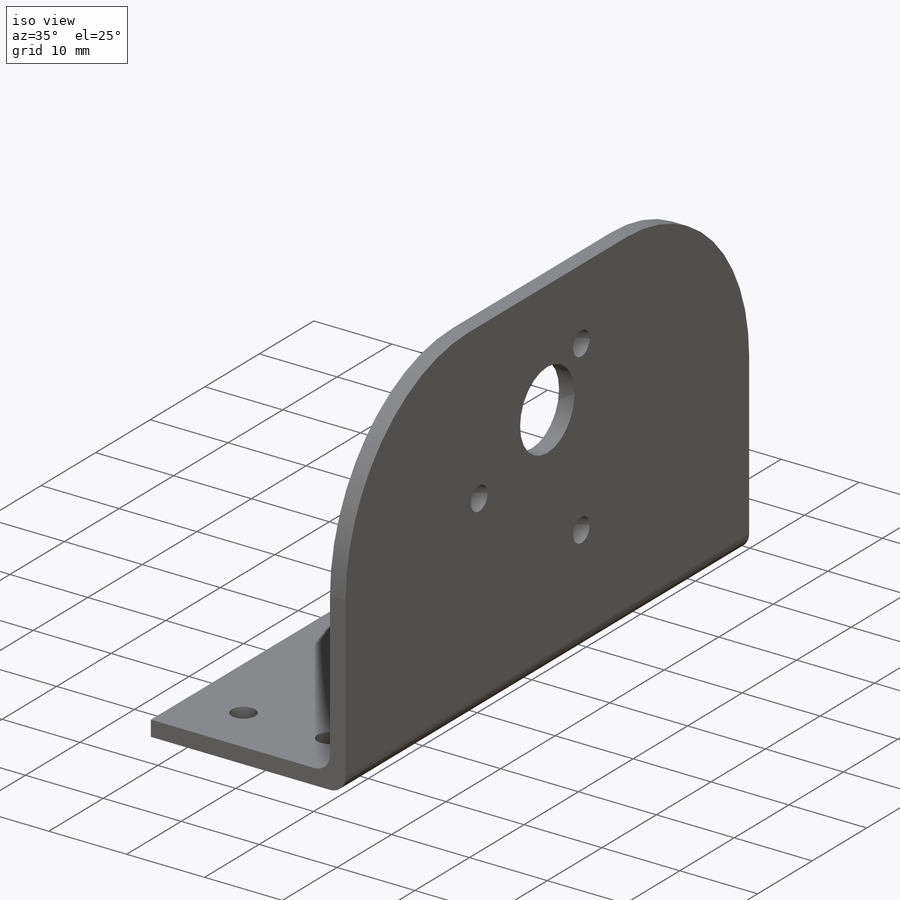
[diagram: iso view]
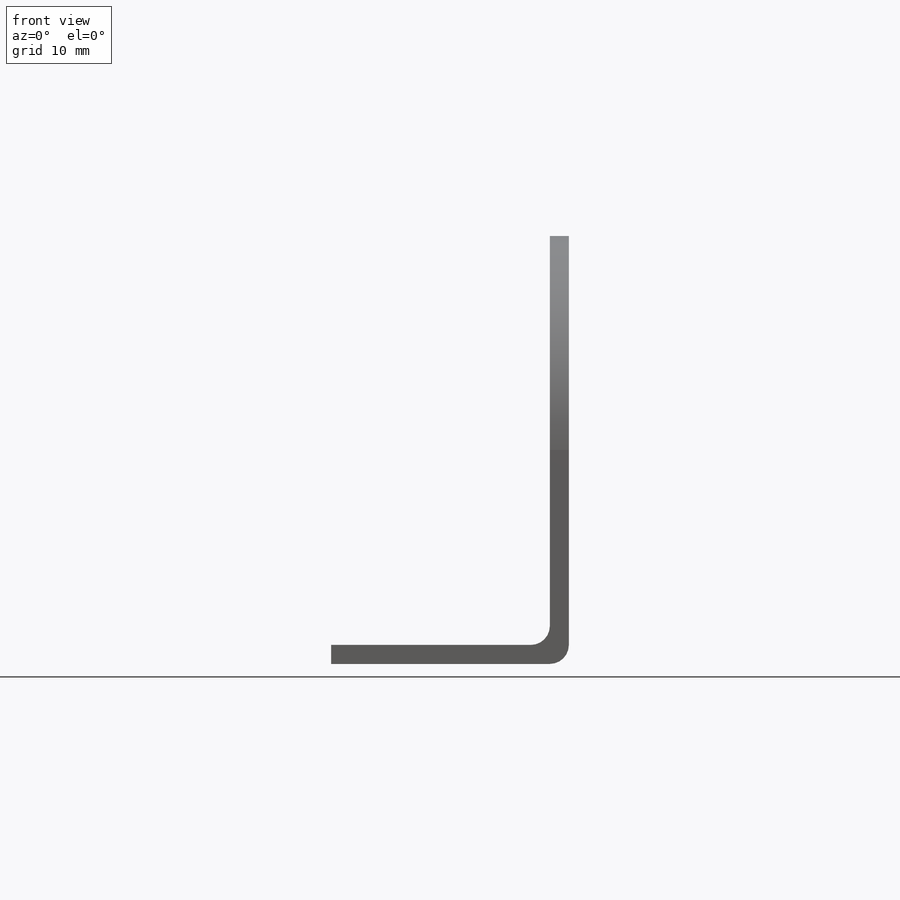
[diagram: front view]
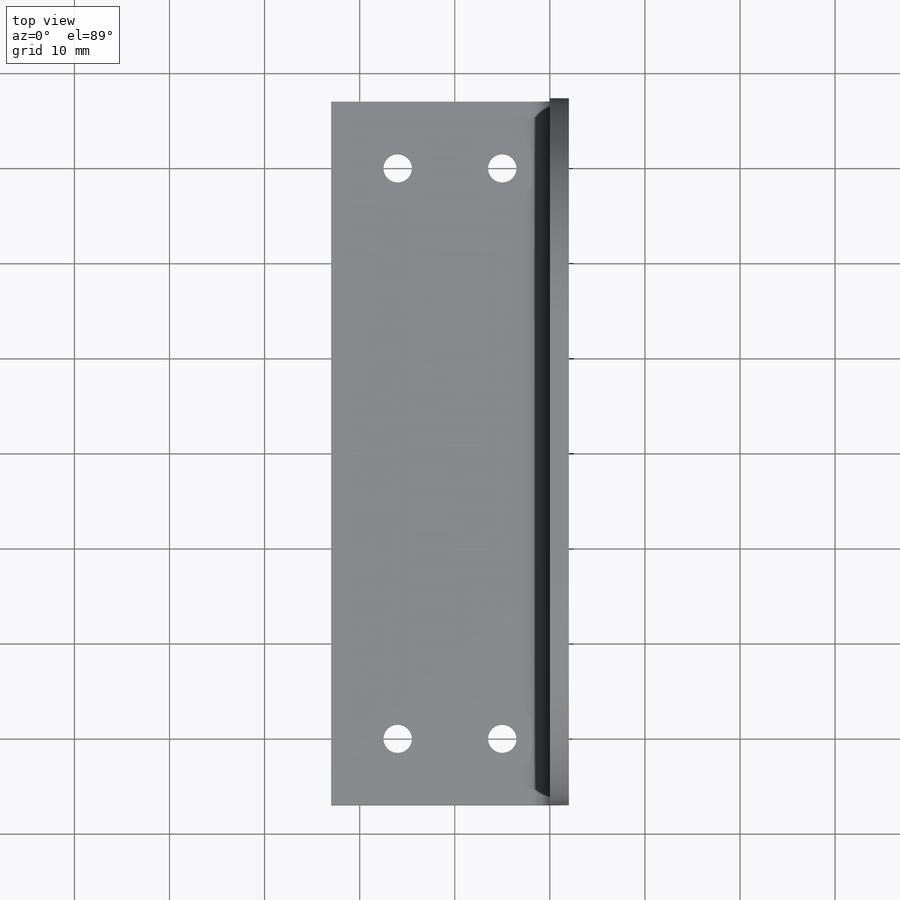
[diagram: top view]
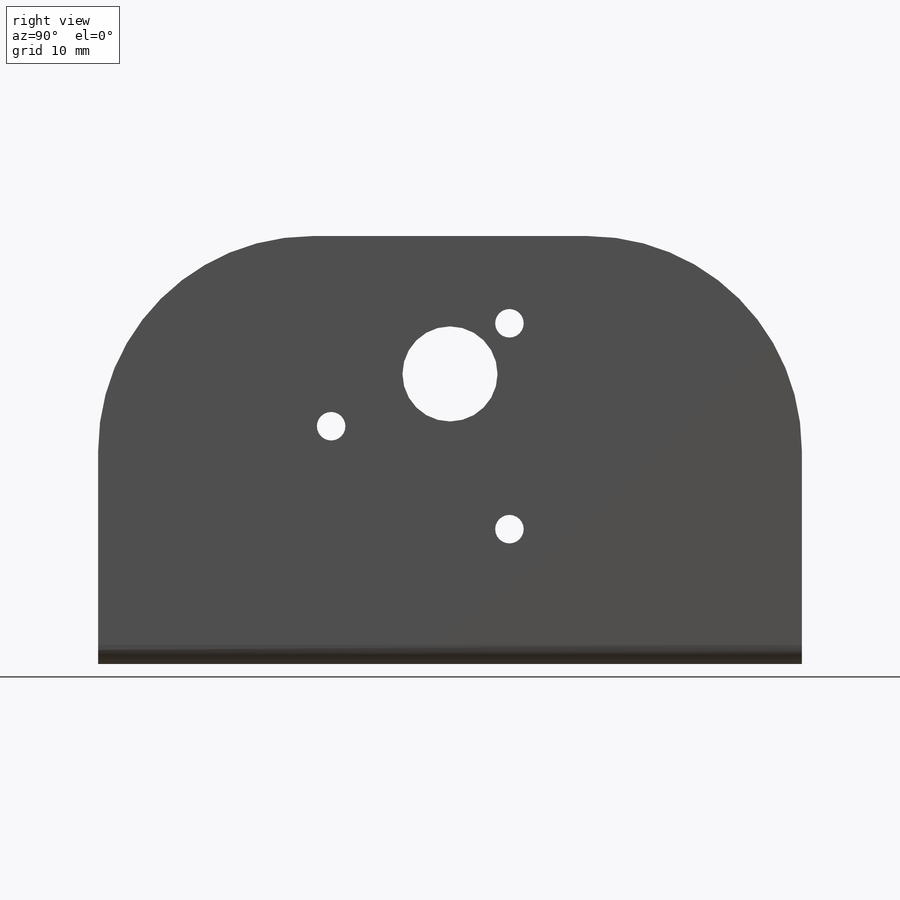
[diagram: right view]
SOLIDWORKS PART (.sldprt)
format: sldprt  version: not decoded by parser v0  size: 210,432 bytes
history: native  units: mm
features: sketch x4, extrude x2, cut_extrude x2, material x1, fillet x1 (+11 scaffold rows collapsed)
feature tree (21):
  scaffold x11  (default folders/planes/origin — collapsed)
  material  "1060 Alloy"
  sketch  "Sketch1"  dims[D1=45.0mm D2=37.0mm D3=22.5mm]
  extrude  "Boss-Extrude1"  Depth=2mm
  sketch  "Sketch2"  dims[D1=2.0mm]
  extrude  "Boss-Extrude2"  Depth=23mm
  fillet  "Fillet1"  Radius=2mm
  sketch  "Sketch3"  dims[c1.D1=10.0mm c1.D3=25.0mm c1.D4=3.0mm c2.D1=25.0mm c2.D6=10.0mm c2.D2=25.0mm c2.D5=~10.074287mm c3.D5=60.0deg c3.D3=5.5mm c3.D7=3.0]
  cut_extrude  "Cut-Extrude1"  [1 undecoded]
  sketch  "Sketch5"  dims[c1.D5=3.0mm c1.D1=7.0mm c1.D2=~8.173643mm c2.D2=90.0deg c3.D2=7.0mm c3.D3=18.0mm c3.D4=7.0mm]
  cut_extrude  "Cut-Extrude2"  [1 undecoded]
decode coverage: 7 of 9 modeling features carry decoded parameters
note: ~ marks probable driven/reference dimensions
note: 2 parameter values undecoded
note: suppression state not decoded; provenance and decode notes live in map.json
